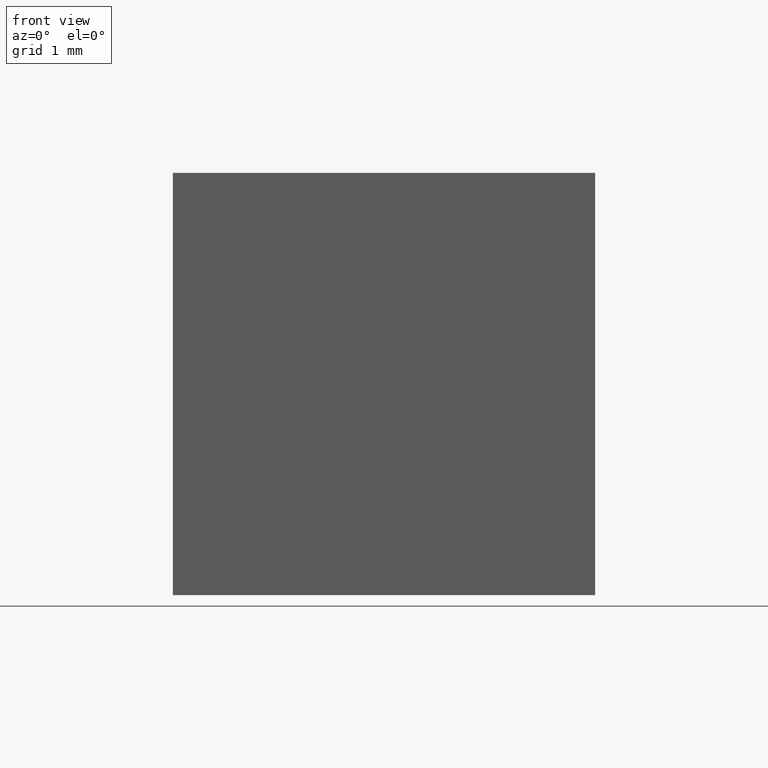
[diagram: clean part render]
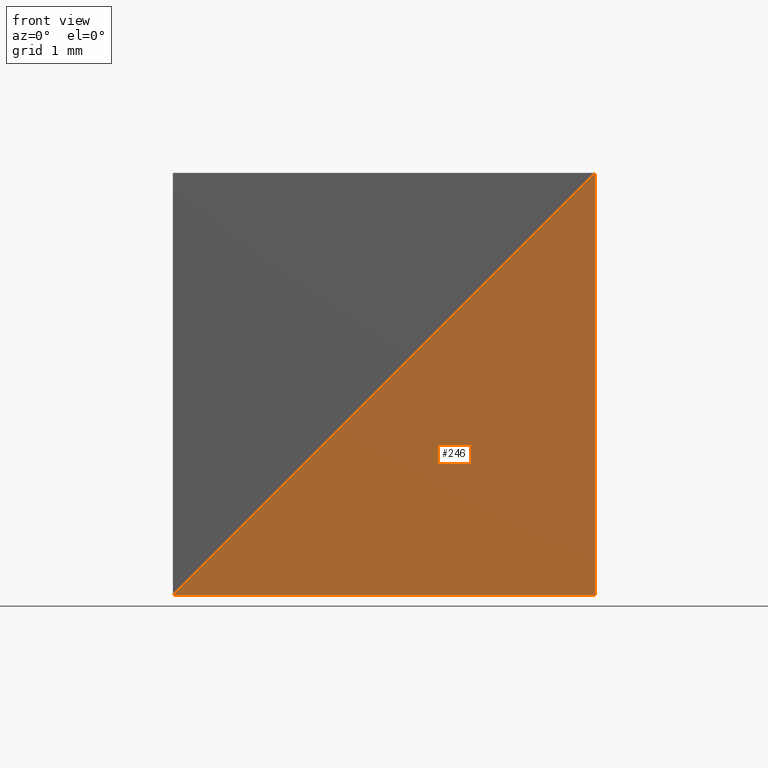
[diagram: same view with one face highlighted and labeled with its STEP entity id]
A machine part, front view. The second image highlights one B-rep face of the part: STEP entity #246.
In plain terms, the highlighted planar face has unit normal (-0, 1, 0).
Its self-contained STEP definition (entity closure, byte-faithful):
#25 = FACE_OUTER_BOUND ( 'NONE', #199, .T. ) ;
#48 = CARTESIAN_POINT ( 'NONE',  ( 0.0000000000000000000, 0.0000000000000000000, 0.0000000000000000000 ) ) ;
#72 = CARTESIAN_POINT ( 'NONE',  ( -5.000000000000000000, 0.0000000000000000000, -4.999999999999999100 ) ) ;
#76 = DIRECTION ( 'NONE',  ( 0.7071067811865475700, 0.0000000000000000000, 0.7071067811865474600 ) ) ;
#78 = CARTESIAN_POINT ( 'NONE',  ( 0.0000000000000000000, 0.0000000000000000000, -5.000000000000000000 ) ) ;
#92 = AXIS2_PLACEMENT_3D ( 'NONE', #122, #103, #265 ) ;
#101 = PLANE ( 'NONE',  #92 ) ;
#103 = DIRECTION ( 'NONE',  ( -0.0000000000000000000, 1.000000000000000000, 0.0000000000000000000 ) ) ;
#107 = CARTESIAN_POINT ( 'NONE',  ( 0.0000000000000000000, 0.0000000000000000000, 0.0000000000000000000 ) ) ;
#112 = ORIENTED_EDGE ( 'NONE', *, *, #147, .F. ) ;
#122 = CARTESIAN_POINT ( 'NONE',  ( 0.0000000000000000000, 0.0000000000000000000, 0.0000000000000000000 ) ) ;
#135 = VERTEX_POINT ( 'NONE', #241 ) ;
#147 = EDGE_CURVE ( 'NONE', #187, #135, #281, .T. ) ;
#177 = VERTEX_POINT ( 'NONE', #48 ) ;
#186 = ORIENTED_EDGE ( 'NONE', *, *, #254, .F. ) ;
#187 = VERTEX_POINT ( 'NONE', #288 ) ;
#189 = ORIENTED_EDGE ( 'NONE', *, *, #286, .F. ) ;
#199 = EDGE_LOOP ( 'NONE', ( #186, #112, #189 ) ) ;
#203 = VECTOR ( 'NONE', #76, 1000.000000000000000 ) ;
#210 = VECTOR ( 'NONE', #270, 1000.000000000000000 ) ;
#241 = CARTESIAN_POINT ( 'NONE',  ( -5.000000000000000000, 0.0000000000000000000, -4.999999999999999100 ) ) ;
#246 = ADVANCED_FACE ( 'NONE', ( #25 ), #101, .F. ) ;
#254 = EDGE_CURVE ( 'NONE', #135, #177, #279, .T. ) ;
#259 = VECTOR ( 'NONE', #267, 1000.000000000000000 ) ;
#265 = DIRECTION ( 'NONE',  ( 0.0000000000000000000, -0.0000000000000000000, 1.000000000000000000 ) ) ;
#266 = LINE ( 'NONE', #107, #259 ) ;
#267 = DIRECTION ( 'NONE',  ( 0.0000000000000000000, 0.0000000000000000000, -1.000000000000000000 ) ) ;
#270 = DIRECTION ( 'NONE',  ( -1.000000000000000000, 0.0000000000000000000, 1.734723475976807100E-016 ) ) ;
#279 = LINE ( 'NONE', #72, #203 ) ;
#281 = LINE ( 'NONE', #78, #210 ) ;
#286 = EDGE_CURVE ( 'NONE', #177, #187, #266, .T. ) ;
#288 = CARTESIAN_POINT ( 'NONE',  ( 0.0000000000000000000, 0.0000000000000000000, -5.000000000000000000 ) ) ;